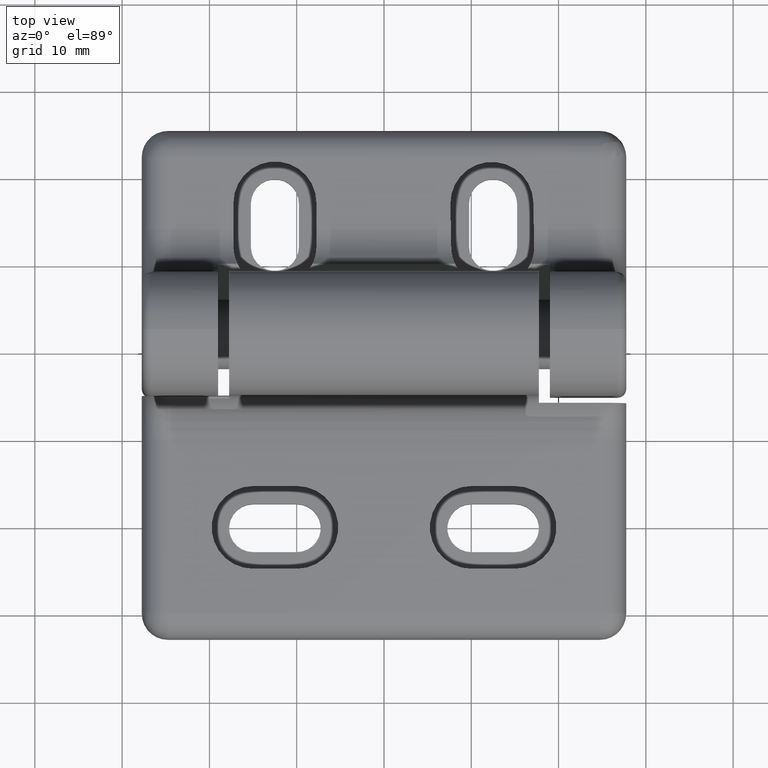
[diagram: clean part render]
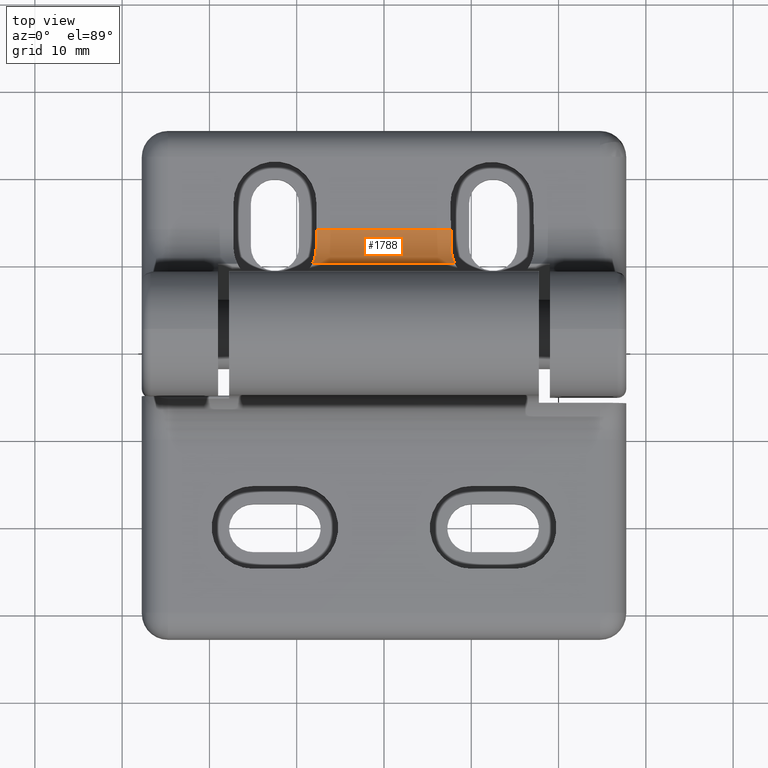
[diagram: same view with one face highlighted and labeled with its STEP entity id]
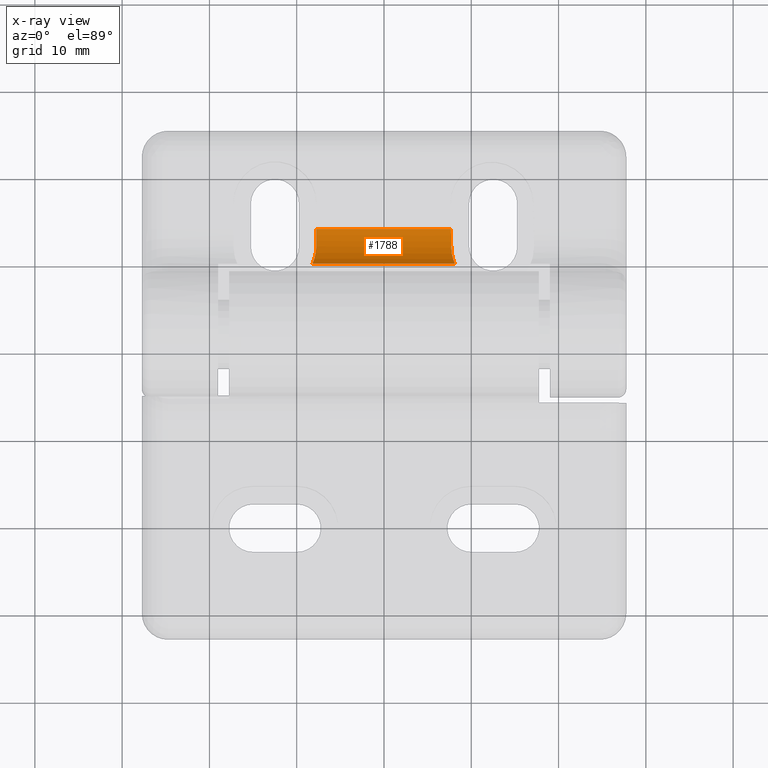
[diagram: x-ray of the same camera — body ghosted, the highlighted face saturated]
A machine part, top view. The second image highlights one B-rep face of the part: STEP entity #1788.
The next image is the same camera in x-ray: the body ghosted, the highlighted face saturated — about 0% of this face is hidden behind the body in this view.
In plain terms, the highlighted cylindrical surface (partial cylindrical patch) has radius 5 mm, axis along (1, 0, 0).
Its self-contained STEP definition (entity closure, byte-faithful):
#95=B_SPLINE_CURVE_WITH_KNOTS('',3,(#2738,#2739,#2740,#2741,#2742,#2743,
#2744,#2745),.UNSPECIFIED.,.F.,.F.,(4,2,2,4),(1.59476642330407,1.66922974861058,
1.80044037844469,1.82876905966544),.UNSPECIFIED.);
#96=B_SPLINE_CURVE_WITH_KNOTS('',3,(#2752,#2753,#2754,#2755,#2756,#2757,
#2758,#2759),.UNSPECIFIED.,.F.,.F.,(4,2,2,4),(-3.55150844078959,-3.47459747608224,
-3.34220829671752,-3.3013222735567),.UNSPECIFIED.);
#139=FACE_OUTER_BOUND('',#248,.T.);
#248=EDGE_LOOP('',(#1224,#1225,#1226,#1227,#1228,#1229));
#376=LINE('',#2736,#521);
#377=LINE('',#2749,#522);
#521=VECTOR('',#2157,16.3130001497284);
#522=VECTOR('',#2160,15.4084261354741);
#670=CIRCLE('',#1916,5.00172935666024);
#671=CIRCLE('',#1917,5.00000000088341);
#781=VERTEX_POINT('',#2734);
#782=VERTEX_POINT('',#2735);
#783=VERTEX_POINT('',#2737);
#784=VERTEX_POINT('',#2746);
#785=VERTEX_POINT('',#2748);
#786=VERTEX_POINT('',#2750);
#955=EDGE_CURVE('',#781,#782,#376,.T.);
#956=EDGE_CURVE('',#781,#783,#95,.T.);
#957=EDGE_CURVE('',#783,#784,#670,.T.);
#958=EDGE_CURVE('',#785,#784,#377,.T.);
#959=EDGE_CURVE('',#786,#785,#671,.T.);
#960=EDGE_CURVE('',#782,#786,#96,.T.);
#1224=ORIENTED_EDGE('',*,*,#955,.F.);
#1225=ORIENTED_EDGE('',*,*,#956,.T.);
#1226=ORIENTED_EDGE('',*,*,#957,.T.);
#1227=ORIENTED_EDGE('',*,*,#958,.F.);
#1228=ORIENTED_EDGE('',*,*,#959,.F.);
#1229=ORIENTED_EDGE('',*,*,#960,.F.);
#1745=CYLINDRICAL_SURFACE('',#1915,5.);
#1788=ADVANCED_FACE('',(#139),#1745,.F.);
#1915=AXIS2_PLACEMENT_3D('',#2733,#2155,#2156);
#1916=AXIS2_PLACEMENT_3D('',#2747,#2158,#2159);
#1917=AXIS2_PLACEMENT_3D('',#2751,#2161,#2162);
#2155=DIRECTION('center_axis',(1.,0.,0.));
#2156=DIRECTION('ref_axis',(0.,0.447213595499958,0.894427190999916));
#2157=DIRECTION('',(-1.,0.,0.));
#2158=DIRECTION('center_axis',(0.999811403100533,0.0194205620450228,3.46813199065805E-014));
#2159=DIRECTION('ref_axis',(-5.78599833536245E-008,2.9787555004442E-006,
-0.999999999995562));
#2160=DIRECTION('',(1.,0.,0.));
#2161=DIRECTION('center_axis',(0.999999999904821,1.3797039251786E-005,3.899801171926E-014));
#2162=DIRECTION('ref_axis',(3.89688281574579E-014,1.20081722322241E-012,
-1.));
#2733=CARTESIAN_POINT('Origin',(1.80514351956156,34.1677756572818,12.9977729309299));
#2734=CARTESIAN_POINT('',(18.11814367929,30.1677756572819,9.99777293092992));
#2735=CARTESIAN_POINT('',(1.80514352956156,30.1677756572819,9.99777293092992));
#2736=CARTESIAN_POINT('',(18.11814367929,30.1677756572819,9.99777293092992));
#2737=CARTESIAN_POINT('',(17.7000321720875,32.0261695744477,8.47964019870881));
#2738=CARTESIAN_POINT('Ctrl Pts',(18.11814367929,30.1677756572818,9.99777293092992));
#2739=CARTESIAN_POINT('Ctrl Pts',(18.0497189250343,30.3196985478157,9.79520907688472));
#2740=CARTESIAN_POINT('Ctrl Pts',(17.9821989074299,30.4913124662105,9.59898258306417));
#2741=CARTESIAN_POINT('Ctrl Pts',(17.8178855255627,31.0077619768943,9.09572984998158));
#2742=CARTESIAN_POINT('Ctrl Pts',(17.7400718705805,31.387184864078,8.81939841222934));
#2743=CARTESIAN_POINT('Ctrl Pts',(17.7058390954238,31.8528870153227,8.56492165318008));
#2744=CARTESIAN_POINT('Ctrl Pts',(17.7017373457608,31.9383836453423,8.52125094609092));
#2745=CARTESIAN_POINT('Ctrl Pts',(17.7000321720875,32.0261695744477,8.47964019870882));
#2746=CARTESIAN_POINT('',(17.65843313283,34.1677756572818,7.99777293092992));
#2747=CARTESIAN_POINT('Origin',(17.65843342223,34.167760758353,12.999502287568));
#2748=CARTESIAN_POINT('',(2.25000699735589,34.1677756572818,7.99777293092992));
#2749=CARTESIAN_POINT('',(2.25000699735589,34.1677756572818,7.99777293092992));
#2750=CARTESIAN_POINT('',(2.2500344924408,32.1749506444047,8.41207249718468));
#2751=CARTESIAN_POINT('Origin',(2.25000699735569,34.1677756572758,12.9977729318133));
#2752=CARTESIAN_POINT('Ctrl Pts',(1.80514352956156,30.1677756572818,9.99777293092991));
#2753=CARTESIAN_POINT('Ctrl Pts',(1.87803197920135,30.3241153427702,9.78932001694548));
#2754=CARTESIAN_POINT('Ctrl Pts',(1.950137797435,30.5014002376847,9.58747886905983));
#2755=CARTESIAN_POINT('Ctrl Pts',(2.12288016427953,31.0282527892243,9.07884958820218));
#2756=CARTESIAN_POINT('Ctrl Pts',(2.20449092107755,31.4120956143735,8.80253425473225));
#2757=CARTESIAN_POINT('Ctrl Pts',(2.24468776295406,31.9195665332516,8.52965925188875));
#2758=CARTESIAN_POINT('Ctrl Pts',(2.25003595779728,32.0451408191819,8.46848443912436));
#2759=CARTESIAN_POINT('Ctrl Pts',(2.2500344924408,32.1749506444047,8.41207249718468));